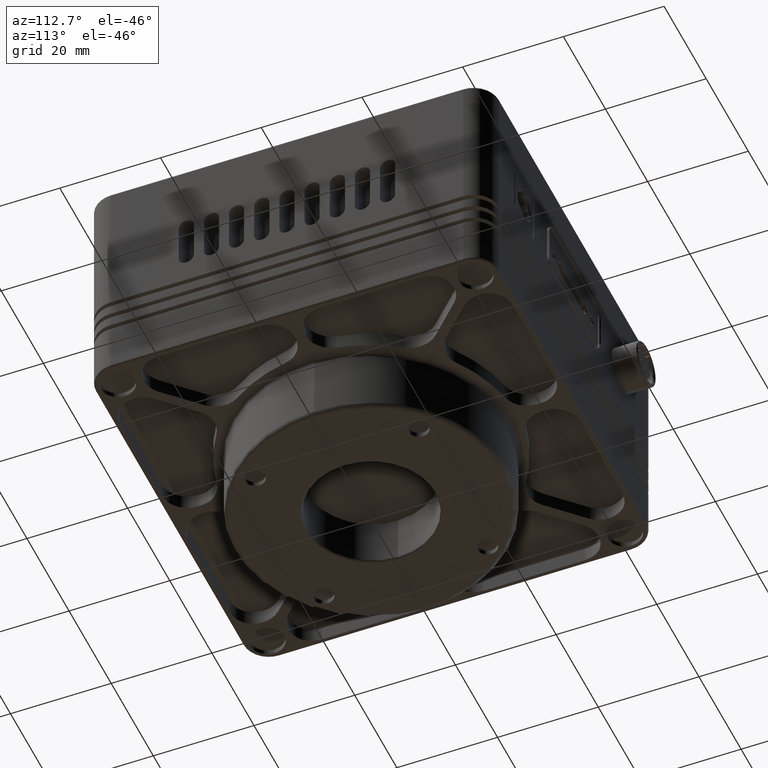
[diagram: clean part render]
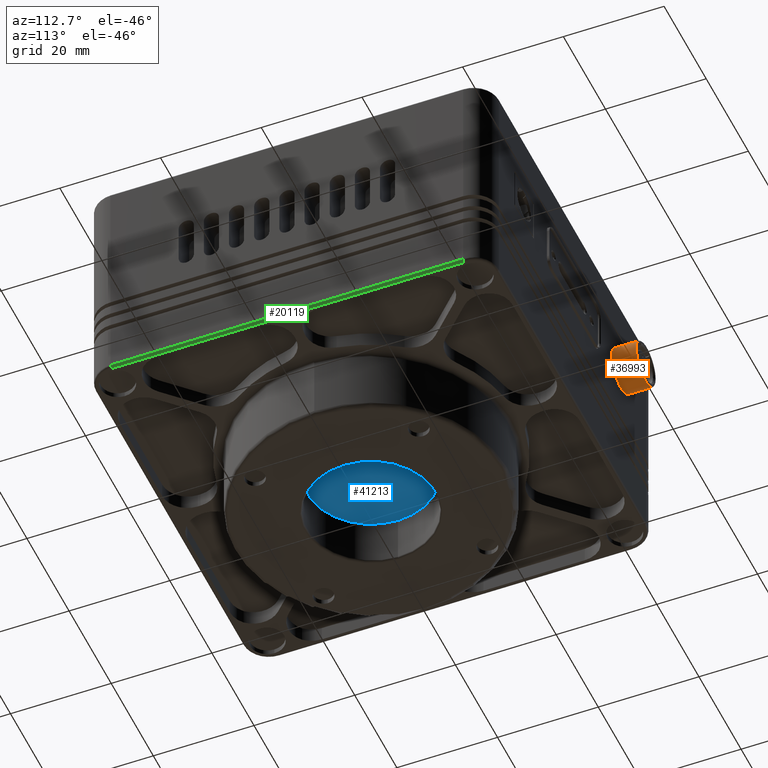
[diagram: same view with three faces highlighted in distinct colors, each labeled with its STEP entity id]
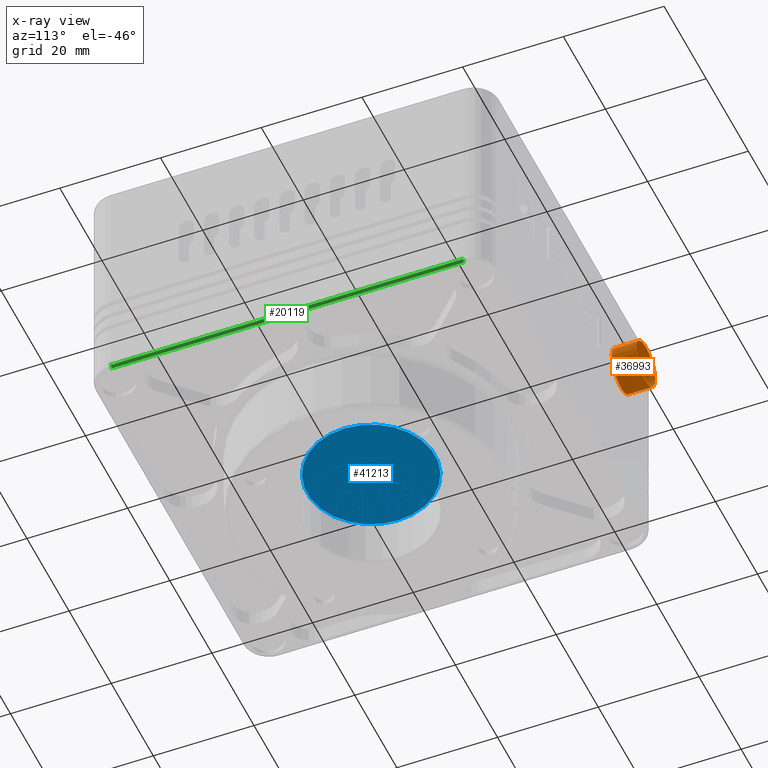
[diagram: x-ray of the same camera — body ghosted, the three highlighted faces saturated]
A machine part, auxiliary view with three faces highlighted in distinct colors.
The next image is the same camera in x-ray (body ghosted, the three faces saturated) — at least one of them is partly hidden behind the body in this view.
Their STEP definitions:

[orange] entity #36993 — the highlighted cylindrical surface (bore or boss wall) has radius 4.45 mm, axis along (0, -1, 0).
#1207 = CIRCLE ( 'NONE', #9310, 4.449999999999999289 ) ;
#2156 = FACE_OUTER_BOUND ( 'NONE', #10945, .T. ) ;
#4475 = EDGE_CURVE ( 'NONE', #22247, #22247, #5491, .T. ) ;
#5364 = VERTEX_POINT ( 'NONE', #15089 ) ;
#5491 = CIRCLE ( 'NONE', #14358, 4.449999999999999289 ) ;
#8856 = CYLINDRICAL_SURFACE ( 'NONE', #15603, 4.449999999999999289 ) ;
#9310 = AXIS2_PLACEMENT_3D ( 'NONE', #19985, #40844, #29739 ) ;
#10778 = ORIENTED_EDGE ( 'NONE', *, *, #27565, .T. ) ;
#10945 = EDGE_LOOP ( 'NONE', ( #10778 ) ) ;
#11791 = CARTESIAN_POINT ( 'NONE',  ( -27.44999999999999218, 39.99999999999997868, 13.19999999999998863 ) ) ;
#13233 = DIRECTION ( 'NONE',  ( 0.000000000000000000, -1.000000000000000000, 0.000000000000000000 ) ) ;
#14358 = AXIS2_PLACEMENT_3D ( 'NONE', #24658, #21394, #38781 ) ;
#15089 = CARTESIAN_POINT ( 'NONE',  ( -27.44999999999999218, 44.90000030294000055, 13.19999999999998863 ) ) ;
#15603 = AXIS2_PLACEMENT_3D ( 'NONE', #45012, #13233, #23705 ) ;
#16048 = FACE_OUTER_BOUND ( 'NONE', #32548, .T. ) ;
#19985 = CARTESIAN_POINT ( 'NONE',  ( -22.99999999999999289, 44.90000030294000055, 13.19999999999998863 ) ) ;
#21394 = DIRECTION ( 'NONE',  ( -0.000000000000000000, 1.000000000000000000, -0.000000000000000000 ) ) ;
#22247 = VERTEX_POINT ( 'NONE', #11791 ) ;
#23705 = DIRECTION ( 'NONE',  ( -1.000000000000000000, 0.000000000000000000, 0.000000000000000000 ) ) ;
#24658 = CARTESIAN_POINT ( 'NONE',  ( -22.99999999999999289, 39.99999999999997868, 13.19999999999998863 ) ) ;
#27565 = EDGE_CURVE ( 'NONE', #5364, #5364, #1207, .T. ) ;
#28805 = ORIENTED_EDGE ( 'NONE', *, *, #4475, .T. ) ;
#29739 = DIRECTION ( 'NONE',  ( -1.000000000000000000, 0.000000000000000000, 0.000000000000000000 ) ) ;
#32548 = EDGE_LOOP ( 'NONE', ( #28805 ) ) ;
#36993 = ADVANCED_FACE ( 'NONE', ( #16048, #2156 ), #8856, .T. ) ;
#38781 = DIRECTION ( 'NONE',  ( -1.000000000000000000, 0.000000000000000000, 0.000000000000000000 ) ) ;
#40844 = DIRECTION ( 'NONE',  ( 0.000000000000000000, -1.000000000000000000, 0.000000000000000000 ) ) ;
#45012 = CARTESIAN_POINT ( 'NONE',  ( -22.99999999999999289, 45.70499999999999829, 13.19999999999998863 ) ) ;

[blue] entity #41213 — the highlighted planar face has unit normal (0, 0, -1).
#4556 = CARTESIAN_POINT ( 'NONE',  ( 0.000000000000000000, 0.000000000000000000, -19.99999999999999645 ) ) ;
#5541 = ORIENTED_EDGE ( 'NONE', *, *, #16546, .T. ) ;
#8415 = CARTESIAN_POINT ( 'NONE',  ( -12.69999999999999929, 0.000000000000000000, -19.99999999999999645 ) ) ;
#16403 = AXIS2_PLACEMENT_3D ( 'NONE', #37673, #23536, #16777 ) ;
#16546 = EDGE_CURVE ( 'NONE', #33499, #33499, #44553, .T. ) ;
#16777 = DIRECTION ( 'NONE',  ( -1.000000000000000000, 0.000000000000000000, 0.000000000000000000 ) ) ;
#23536 = DIRECTION ( 'NONE',  ( 0.000000000000000000, 0.000000000000000000, -1.000000000000000000 ) ) ;
#26587 = FACE_OUTER_BOUND ( 'NONE', #28104, .T. ) ;
#28104 = EDGE_LOOP ( 'NONE', ( #5541 ) ) ;
#30052 = PLANE ( 'NONE',  #36607 ) ;
#33499 = VERTEX_POINT ( 'NONE', #8415 ) ;
#36607 = AXIS2_PLACEMENT_3D ( 'NONE', #4556, #36785, #40929 ) ;
#36785 = DIRECTION ( 'NONE',  ( 0.000000000000000000, 0.000000000000000000, -1.000000000000000000 ) ) ;
#37673 = CARTESIAN_POINT ( 'NONE',  ( 0.000000000000000000, 0.000000000000000000, -19.99999999999999645 ) ) ;
#40929 = DIRECTION ( 'NONE',  ( -1.000000000000000000, 0.000000000000000000, -0.000000000000000000 ) ) ;
#41213 = ADVANCED_FACE ( 'NONE', ( #26587 ), #30052, .T. ) ;
#44553 = CIRCLE ( 'NONE', #16403, 12.69999999999999929 ) ;

[green] entity #20119 — the highlighted cylindrical surface (edge-blend (fillet) strip) has radius 0.5 mm, axis along (0, 1, 0).
#358 = DIRECTION ( 'NONE',  ( 0.000000000000000000, 0.000000000000000000, 1.000000000000000000 ) ) ;
#577 = CARTESIAN_POINT ( 'NONE',  ( 39.50000000000000000, 0.000000000000000000, -15.30000000000000071 ) ) ;
#2933 = DIRECTION ( 'NONE',  ( -0.000000000000000000, 1.000000000000000000, -0.000000000000000000 ) ) ;
#3099 = AXIS2_PLACEMENT_3D ( 'NONE', #11650, #33251, #30834 ) ;
#3704 = LINE ( 'NONE', #17850, #39502 ) ;
#8103 = CARTESIAN_POINT ( 'NONE',  ( 39.50000000000000000, 34.99999999999999289, -15.80000000000000071 ) ) ;
#8387 = EDGE_LOOP ( 'NONE', ( #12167, #26790, #31056, #31833 ) ) ;
#8409 = CARTESIAN_POINT ( 'NONE',  ( 40.00000000000000000, 34.99999999999999289, -15.30000000000000782 ) ) ;
#10155 = EDGE_CURVE ( 'NONE', #17294, #41724, #10781, .T. ) ;
#10781 = LINE ( 'NONE', #28656, #44984 ) ;
#11650 = CARTESIAN_POINT ( 'NONE',  ( 39.50000000000000000, -35.00000000000000000, -15.30000000000000782 ) ) ;
#12167 = ORIENTED_EDGE ( 'NONE', *, *, #20213, .T. ) ;
#15600 = DIRECTION ( 'NONE',  ( 0.000000000000000000, 0.000000000000000000, 1.000000000000000000 ) ) ;
#15711 = CARTESIAN_POINT ( 'NONE',  ( 40.00000000000000000, -35.00000000000000000, -15.30000000000000782 ) ) ;
#15832 = DIRECTION ( 'NONE',  ( -0.000000000000000000, 1.000000000000000000, 0.000000000000000000 ) ) ;
#17258 = VERTEX_POINT ( 'NONE', #29415 ) ;
#17294 = VERTEX_POINT ( 'NONE', #15711 ) ;
#17487 = FACE_OUTER_BOUND ( 'NONE', #8387, .T. ) ;
#17850 = CARTESIAN_POINT ( 'NONE',  ( 39.50000000000000000, -35.00000000000000000, -15.80000000000000071 ) ) ;
#18128 = EDGE_CURVE ( 'NONE', #41724, #25315, #26192, .T. ) ;
#20119 = ADVANCED_FACE ( 'NONE', ( #17487 ), #32331, .T. ) ;
#20213 = EDGE_CURVE ( 'NONE', #17294, #17258, #45256, .T. ) ;
#25315 = VERTEX_POINT ( 'NONE', #8103 ) ;
#25471 = AXIS2_PLACEMENT_3D ( 'NONE', #40411, #15832, #15600 ) ;
#26024 = AXIS2_PLACEMENT_3D ( 'NONE', #577, #42538, #358 ) ;
#26192 = CIRCLE ( 'NONE', #25471, 0.5000000000000004441 ) ;
#26790 = ORIENTED_EDGE ( 'NONE', *, *, #40875, .F. ) ;
#28656 = CARTESIAN_POINT ( 'NONE',  ( 40.00000000000000000, 34.99999999999999289, -15.30000000000000071 ) ) ;
#29415 = CARTESIAN_POINT ( 'NONE',  ( 39.50000000000000000, -35.00000000000000000, -15.80000000000000071 ) ) ;
#30834 = DIRECTION ( 'NONE',  ( 0.000000000000000000, 0.000000000000000000, 1.000000000000000000 ) ) ;
#31056 = ORIENTED_EDGE ( 'NONE', *, *, #18128, .F. ) ;
#31833 = ORIENTED_EDGE ( 'NONE', *, *, #10155, .F. ) ;
#32004 = DIRECTION ( 'NONE',  ( 0.000000000000000000, -1.000000000000000000, 0.000000000000000000 ) ) ;
#32331 = CYLINDRICAL_SURFACE ( 'NONE', #26024, 0.5000000000000004441 ) ;
#33251 = DIRECTION ( 'NONE',  ( -0.000000000000000000, 1.000000000000000000, 0.000000000000000000 ) ) ;
#39502 = VECTOR ( 'NONE', #32004, 1000.000000000000000 ) ;
#40411 = CARTESIAN_POINT ( 'NONE',  ( 39.50000000000000000, 34.99999999999999289, -15.30000000000000071 ) ) ;
#40875 = EDGE_CURVE ( 'NONE', #25315, #17258, #3704, .T. ) ;
#41724 = VERTEX_POINT ( 'NONE', #8409 ) ;
#42538 = DIRECTION ( 'NONE',  ( 0.000000000000000000, 1.000000000000000000, 0.000000000000000000 ) ) ;
#44984 = VECTOR ( 'NONE', #2933, 1000.000000000000000 ) ;
#45256 = CIRCLE ( 'NONE', #3099, 0.5000000000000004441 ) ;